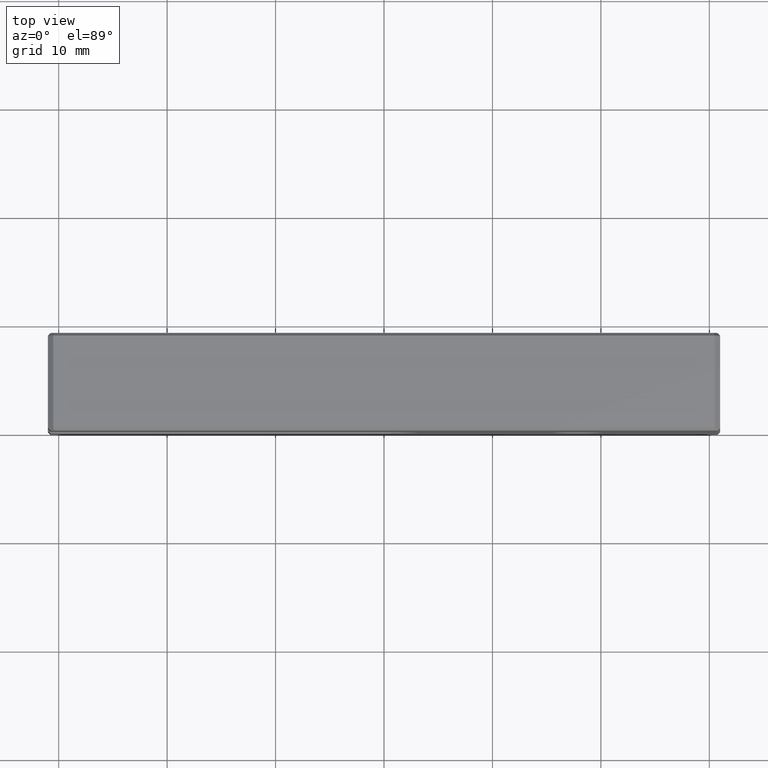
[diagram: clean part render]
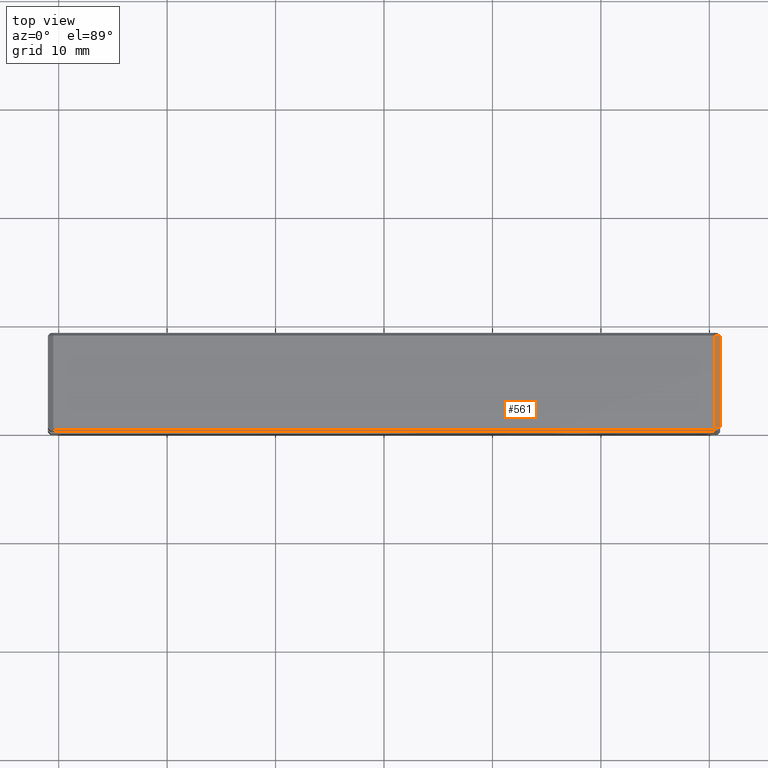
[diagram: same view with one face highlighted and labeled with its STEP entity id]
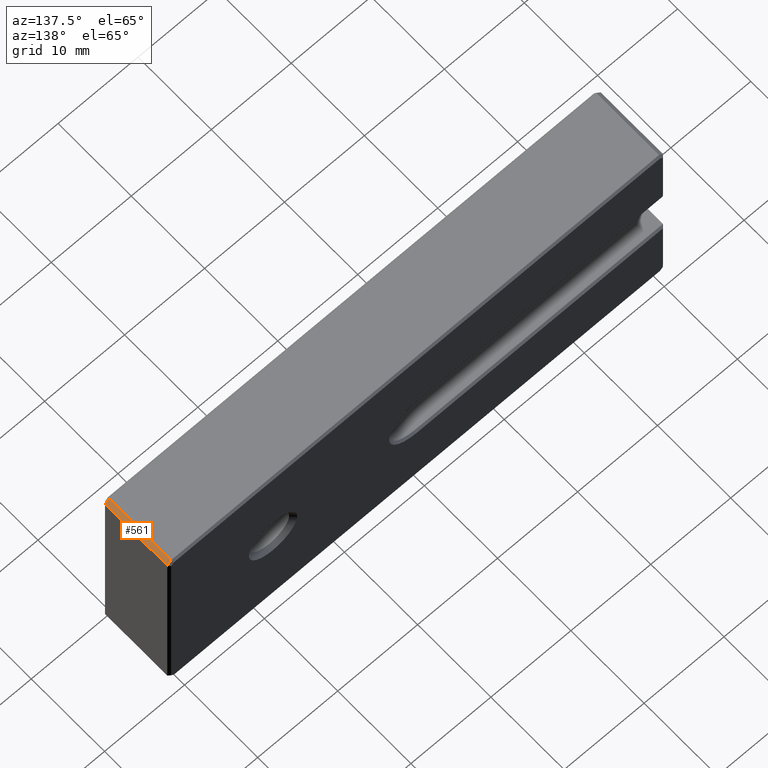
[diagram: same view with one face highlighted and labeled with its STEP entity id]
A machine part, top view. The second image highlights one B-rep face of the part: STEP entity #561.
A second angle (auxiliary view) of the same face is appended — the face is thin or edge-on in the first view.
In plain terms, the highlighted planar face has unit normal (-0.7071, -0, -0.7071).
Its self-contained STEP definition (entity closure, byte-faithful):
#12 = DIRECTION ( 'NONE',  ( -0.7071067811865524577, -0.000000000000000000, 0.7071067811865426878 ) ) ;
#17 = PLANE ( 'NONE',  #120 ) ;
#86 = VERTEX_POINT ( 'NONE', #1131 ) ;
#90 = VECTOR ( 'NONE', #92, 1000.000000000000000 ) ;
#92 = DIRECTION ( 'NONE',  ( 0.000000000000000000, -1.000000000000000000, 0.000000000000000000 ) ) ;
#93 = CARTESIAN_POINT ( 'NONE',  ( 30.99999999999999645, 9.000000000000000000, 12.00000000000000888 ) ) ;
#100 = ORIENTED_EDGE ( 'NONE', *, *, #134, .F. ) ;
#120 = AXIS2_PLACEMENT_3D ( 'NONE', #93, #621, #353 ) ;
#134 = EDGE_CURVE ( 'NONE', #1094, #86, #706, .T. ) ;
#179 = CARTESIAN_POINT ( 'NONE',  ( 30.99999999999999645, 9.000000000000000000, 12.00000000000000888 ) ) ;
#186 = CARTESIAN_POINT ( 'NONE',  ( 30.99999999999999645, 8.749999999999998224, 12.00000000000000888 ) ) ;
#265 = LINE ( 'NONE', #179, #90 ) ;
#284 = FACE_OUTER_BOUND ( 'NONE', #439, .T. ) ;
#319 = DIRECTION ( 'NONE',  ( 0.7071067811865524577, -0.000000000000000000, -0.7071067811865426878 ) ) ;
#353 = DIRECTION ( 'NONE',  ( 0.000000000000000000, -1.000000000000000000, 0.000000000000000000 ) ) ;
#410 = VECTOR ( 'NONE', #12, 1000.000000000000000 ) ;
#431 = VECTOR ( 'NONE', #811, 1000.000000000000000 ) ;
#439 = EDGE_LOOP ( 'NONE', ( #100, #695, #819, #598 ) ) ;
#471 = LINE ( 'NONE', #636, #1046 ) ;
#529 = CARTESIAN_POINT ( 'NONE',  ( 30.49999999999999645, 9.000000000000000000, 12.50000000000000178 ) ) ;
#561 = ADVANCED_FACE ( 'NONE', ( #284 ), #17, .F. ) ;
#598 = ORIENTED_EDGE ( 'NONE', *, *, #629, .T. ) ;
#619 = VERTEX_POINT ( 'NONE', #186 ) ;
#621 = DIRECTION ( 'NONE',  ( -0.7071067811865425767, -0.000000000000000000, -0.7071067811865524577 ) ) ;
#629 = EDGE_CURVE ( 'NONE', #619, #86, #791, .T. ) ;
#636 = CARTESIAN_POINT ( 'NONE',  ( 30.99999999999999645, 0.2499999999999929501, 12.00000000000000888 ) ) ;
#648 = VERTEX_POINT ( 'NONE', #1044 ) ;
#695 = ORIENTED_EDGE ( 'NONE', *, *, #707, .T. ) ;
#706 = LINE ( 'NONE', #529, #431 ) ;
#707 = EDGE_CURVE ( 'NONE', #1094, #648, #471, .T. ) ;
#791 = LINE ( 'NONE', #889, #410 ) ;
#811 = DIRECTION ( 'NONE',  ( 0.000000000000000000, 1.000000000000000000, 0.000000000000000000 ) ) ;
#819 = ORIENTED_EDGE ( 'NONE', *, *, #1038, .F. ) ;
#889 = CARTESIAN_POINT ( 'NONE',  ( 30.99999999999999645, 8.749999999999998224, 12.00000000000000888 ) ) ;
#1038 = EDGE_CURVE ( 'NONE', #619, #648, #265, .T. ) ;
#1044 = CARTESIAN_POINT ( 'NONE',  ( 30.99999999999999645, 0.2499999999999932832, 12.00000000000000888 ) ) ;
#1046 = VECTOR ( 'NONE', #319, 1000.000000000000000 ) ;
#1057 = CARTESIAN_POINT ( 'NONE',  ( 30.49999999999999645, 0.2499999999999932832, 12.50000000000000178 ) ) ;
#1094 = VERTEX_POINT ( 'NONE', #1057 ) ;
#1131 = CARTESIAN_POINT ( 'NONE',  ( 30.49999999999999645, 8.749999999999998224, 12.50000000000000178 ) ) ;